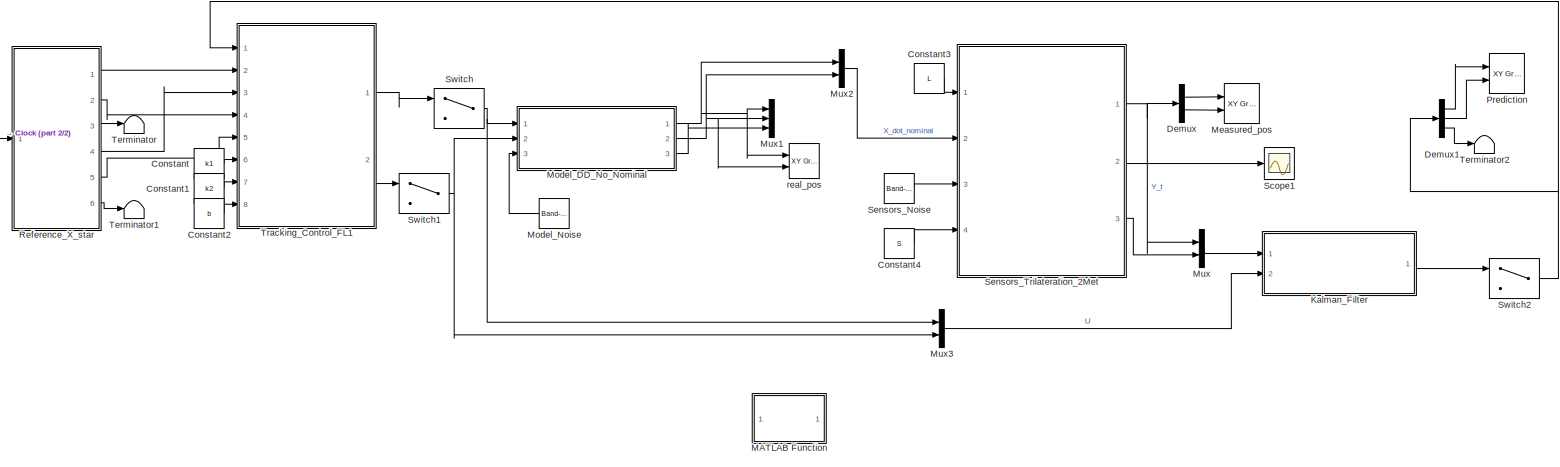
[diagram: root canvas - part 1/2, most of the canvas]
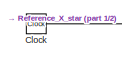
[diagram: root canvas - part 2/2, middle left region]
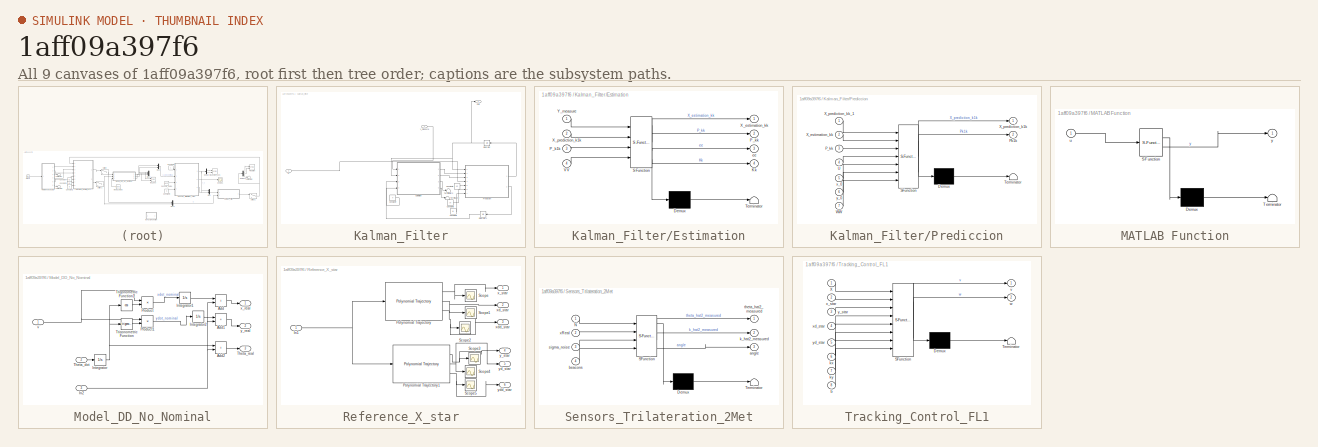
[diagram: thumbnail index - all 9 canvases of the model, root first then tree order]
MODEL slx_1aff09a397f6
KIND model
CONFIG AbsTol = auto
CONFIG EnableMultiTasking = off
CONFIG FixedStep = auto
CONFIG MaxStep = auto
CONFIG MinStep = auto
CONFIG RelTol = 1e-3
CONFIG SampleTimeConstraint = Unconstrained
CONFIG SolverName = VariableStepAuto
CONFIG StartTime = 0.0
CONFIG StopTime = 10.0
BLOCK [Clock] Clock
BLOCK [Constant] Constant
  Value = k1
BLOCK [Constant] Constant1
  Value = k2
BLOCK [Constant] Constant2
  Value = b
BLOCK [Constant] Constant3
  Value = L
BLOCK [Constant] Constant4
  Value = S
BLOCK [Demux] Demux
  Outputs = 2
  Ports = [1, 2]
BLOCK [Demux] Demux1
  Outputs = 3
  Ports = [1, 3]
BLOCK [SubSystem] Kalman_Filter
  Ports = [2, 1]
  RequestExecContextInheritance = off
BLOCK [Constant] Kalman_Filter/Constant5
  Value = x0
BLOCK [Constant] Kalman_Filter/Constant6
  Value = y0
BLOCK [Constant] Kalman_Filter/Constant7
  Value = V
BLOCK [Constant] Kalman_Filter/Constant8
  Value = W
BLOCK [SubSystem] Kalman_Filter/Estimation
  ErrorFcn = Stateflow.Translate.translate
  PermitHierarchicalResolution = ExplicitOnly
  Ports = [4, 4]
  RequestExecContextInheritance = off
  SFBlockType = MATLAB Function
  TreatAsAtomicUnit = on
BLOCK [Demux] Kalman_Filter/Estimation/ Demux 
  Outputs = 1
  Ports = [1, 1]
BLOCK [S-Function] Kalman_Filter/Estimation/ SFunction 
  EnableBusSupport = on
  FunctionName = sf_sfun
  PortCounts = [4 5]
  Ports = [4, 5]
  SFcnIsStateOwnerBlock = off
  SFunctionDeploymentMode = off
  Tag = Stateflow S-Function 2
BLOCK [Terminator] Kalman_Filter/Estimation/ Terminator 
BLOCK [Outport] Kalman_Filter/Estimation/Kk
  Port = 4
BLOCK [Inport] Kalman_Filter/Estimation/P_k1k
  Port = 3
BLOCK [Outport] Kalman_Filter/Estimation/P_kk
  Port = 2
BLOCK [Inport] Kalman_Filter/Estimation/VV
  Port = 4
BLOCK [Outport] Kalman_Filter/Estimation/X_estimation_kk
BLOCK [Inport] Kalman_Filter/Estimation/X_prediction_k1k
  Port = 2
BLOCK [Inport] Kalman_Filter/Estimation/Y_measure
BLOCK [Outport] Kalman_Filter/Estimation/ee
  Port = 3
BLOCK [Integrator] Kalman_Filter/Integrator
  InitialCondition = [x0;y0;theta0]
  Ports = [1, 1]
BLOCK [Integrator] Kalman_Filter/Integrator1
  InitialCondition = P0
  Ports = [1, 1]
BLOCK [Outport] Kalman_Filter/Out1
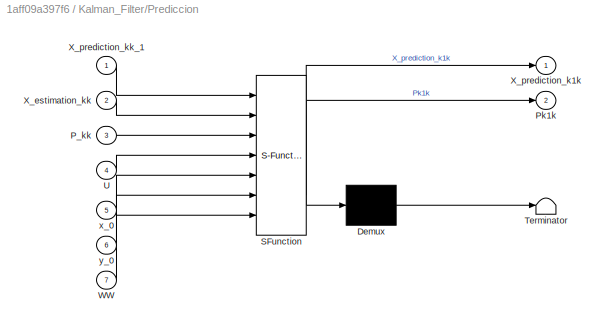
BLOCK [SubSystem] Kalman_Filter/Prediccion
  ErrorFcn = Stateflow.Translate.translate
  PermitHierarchicalResolution = ExplicitOnly
  Ports = [7, 2]
  RequestExecContextInheritance = off
  SFBlockType = MATLAB Function
  TreatAsAtomicUnit = on
BLOCK [Demux] Kalman_Filter/Prediccion/ Demux 
  Outputs = 1
  Ports = [1, 1]
BLOCK [S-Function] Kalman_Filter/Prediccion/ SFunction 
  EnableBusSupport = on
  FunctionName = sf_sfun
  PortCounts = [7 3]
  Ports = [7, 3]
  SFcnIsStateOwnerBlock = off
  SFunctionDeploymentMode = off
  Tag = Stateflow S-Function 4
BLOCK [Terminator] Kalman_Filter/Prediccion/ Terminator 
BLOCK [Inport] Kalman_Filter/Prediccion/P_kk
  Port = 3
BLOCK [Outport] Kalman_Filter/Prediccion/Pk1k
  Port = 2
BLOCK [Inport] Kalman_Filter/Prediccion/U
  Port = 4
BLOCK [Inport] Kalman_Filter/Prediccion/WW
  Port = 7
BLOCK [Inport] Kalman_Filter/Prediccion/X_estimation_kk
  Port = 2
BLOCK [Outport] Kalman_Filter/Prediccion/X_prediction_k1k
BLOCK [Inport] Kalman_Filter/Prediccion/X_prediction_kk_1
BLOCK [Inport] Kalman_Filter/Prediccion/x_0
  Port = 5
BLOCK [Inport] Kalman_Filter/Prediccion/y_0
  Port = 6
BLOCK [Terminator] Kalman_Filter/Terminator3
BLOCK [Terminator] Kalman_Filter/Terminator4
BLOCK [Inport] Kalman_Filter/U
  Port = 2
BLOCK [Inport] Kalman_Filter/Y_measure
BLOCK [SubSystem] MATLAB Function
  ErrorFcn = Stateflow.Translate.translate
  PermitHierarchicalResolution = ExplicitOnly
  Ports = [1, 1]
  RequestExecContextInheritance = off
  SFBlockType = MATLAB Function
  TreatAsAtomicUnit = on
BLOCK [Demux] MATLAB Function/ Demux 
  Outputs = 1
  Ports = [1, 1]
BLOCK [S-Function] MATLAB Function/ SFunction 
  EnableBusSupport = off
  FunctionName = sf_sfun
  PortCounts = [1 2]
  Ports = [1, 2]
  SFcnIsStateOwnerBlock = off
  SFunctionDeploymentMode = off
  Tag = Stateflow S-Function 5
BLOCK [Terminator] MATLAB Function/ Terminator 
BLOCK [Inport] MATLAB Function/u
BLOCK [Outport] MATLAB Function/y
BLOCK [Reference] Measured_pos  REF=simulink/Sinks/XY Graph
  Ports = [2]
  SourceBlock = simulink/Sinks/XY Graph
  SourceProductBaseCode = SL
  SourceType = XY scope.
BLOCK [SubSystem] Model_DD_No_Nominal
  Ports = [3, 3]
  RequestExecContextInheritance = off
BLOCK [Sum] Model_DD_No_Nominal/Add
  IconShape = rectangular
  Ports = [2, 1]
BLOCK [Sum] Model_DD_No_Nominal/Add1
  IconShape = rectangular
  Ports = [2, 1]
BLOCK [Sum] Model_DD_No_Nominal/Add2
  IconShape = rectangular
  Ports = [2, 1]
BLOCK [Inport] Model_DD_No_Nominal/In2
  Port = 3
BLOCK [Integrator] Model_DD_No_Nominal/Integrator
  InitialCondition = theta0
  Ports = [1, 1]
BLOCK [Integrator] Model_DD_No_Nominal/Integrator1
  InitialCondition = x0
  Ports = [1, 1]
BLOCK [Integrator] Model_DD_No_Nominal/Integrator2
  InitialCondition = y0
  Ports = [1, 1]
BLOCK [Product] Model_DD_No_Nominal/Product
  Ports = [2, 1]
BLOCK [Product] Model_DD_No_Nominal/Product1
  Ports = [2, 1]
BLOCK [Inport] Model_DD_No_Nominal/Theta_dot
  Port = 2
BLOCK [Outport] Model_DD_No_Nominal/Theta_real
  Port = 3
BLOCK [Trigonometry] Model_DD_No_Nominal/Trigonometric Function
  Ports = [1, 1]
BLOCK [Trigonometry] Model_DD_No_Nominal/Trigonometric Function1
  Operator = cos
  Ports = [1, 1]
BLOCK [Inport] Model_DD_No_Nominal/v
BLOCK [Outport] Model_DD_No_Nominal/x_real
BLOCK [Outport] Model_DD_No_Nominal/y_real
  Port = 2
BLOCK [Reference] Model_Noise  REF=simulink/Sources/Band-Limited
White Noise
  Ports = [0, 1]
  SourceBlock = simulink/Sources/Band-Limited\nWhite Noise
  SourceProductBaseCode = SL
  SourceType = Band-Limited White Noise.
BLOCK [Mux] Mux
  DisplayOption = bar
  Inputs = 2
  Ports = [2, 1]
BLOCK [Mux] Mux1
  DisplayOption = bar
  Inputs = 3
  Ports = [3, 1]
BLOCK [Mux] Mux2
  DisplayOption = bar
  Inputs = 2
  Ports = [2, 1]
BLOCK [Mux] Mux3
  DisplayOption = bar
  Inputs = 2
  Ports = [2, 1]
BLOCK [Reference] Prediction  REF=simulink/Sinks/XY Graph
  Ports = [2]
  SourceBlock = simulink/Sinks/XY Graph
  SourceProductBaseCode = SL
  SourceType = XY scope.
BLOCK [SubSystem] Reference_X_star
  Ports = [1, 6]
  RequestExecContextInheritance = off
BLOCK [Inport] Reference_X_star/In1
BLOCK [Reference] Reference_X_star/Polynomial Trajectory  REF=robotcorelib/Polynomial Trajectory
  Ports = [1, 3]
  SourceBlock = robotcorelib/Polynomial Trajectory
  SourceProductBaseCode = NV,RO,RR,UV
  SourceType = robotics.slcore.internal.block.PolyTrajSys
BLOCK [Reference] Reference_X_star/Polynomial Trajectory1  REF=robotcorelib/Polynomial Trajectory
  Ports = [1, 3]
  SourceBlock = robotcorelib/Polynomial Trajectory
  SourceProductBaseCode = NV,RO,RR,UV
  SourceType = robotics.slcore.internal.block.PolyTrajSys
BLOCK [Scope] Reference_X_star/Scope
  Floating = off
  NumInputPorts = 1
  Ports = [1]
  ScopeSpecificationString = Simulink.scopes.TimeScopeBlockCfg('CurrentConfiguration', extmgr.ConfigurationSet(extmgr.Configuration('Core','General UI',true),extmgr.Configuration('Core','Source UI',true),extmgr.Configuration('Sources','WiredSimulink',true,'DataLogging',true,'DataLoggingVariableName','x_ref','DataLoggingLimitDataPoints',true,'DataLoggingMaxPoints','10000','DataLoggingSaveFormat','StructureWithTime'),extmgr.Con...<+1542ch>
BLOCK [Scope] Reference_X_star/Scope1
  Floating = off
  NumInputPorts = 1
  Ports = [1]
  ScopeSpecificationString = Simulink.scopes.TimeScopeBlockCfg('CurrentConfiguration', extmgr.ConfigurationSet(extmgr.Configuration('Core','General UI',true),extmgr.Configuration('Core','Source UI',true),extmgr.Configuration('Sources','WiredSimulink',true,'DataLoggingVariableName','xd_ref','DataLogging',true,'DataLoggingLimitDataPoints',true,'DataLoggingMaxPoints','10000','DataLoggingSaveFormat','StructureWithTime'),extmgr.Co...<+1560ch>
BLOCK [Scope] Reference_X_star/Scope2
  Floating = off
  NumInputPorts = 1
  Ports = [1]
  ScopeSpecificationString = Simulink.scopes.TimeScopeBlockCfg('CurrentConfiguration', extmgr.ConfigurationSet(extmgr.Configuration('Core','General UI',true),extmgr.Configuration('Core','Source UI',true),extmgr.Configuration('Sources','WiredSimulink',true,'DataLoggingVariableName','xdd_ref','DataLogging',true,'DataLoggingLimitDataPoints',true,'DataLoggingMaxPoints','10000','DataLoggingSaveFormat','StructureWithTime'),extmgr.C...<+1511ch>
BLOCK [Scope] Reference_X_star/Scope3
  Floating = off
  NumInputPorts = 1
  Ports = [1]
  ScopeSpecificationString = Simulink.scopes.TimeScopeBlockCfg('CurrentConfiguration', extmgr.ConfigurationSet(extmgr.Configuration('Core','General UI',true),extmgr.Configuration('Core','Source UI',true),extmgr.Configuration('Sources','WiredSimulink',true,'DataLoggingVariableName','y_ref','DataLogging',true,'DataLoggingLimitDataPoints',true,'DataLoggingMaxPoints','10000','DataLoggingSaveFormat','StructureWithTime'),extmgr.Con...<+1516ch>
BLOCK [Scope] Reference_X_star/Scope4
  Floating = off
  NumInputPorts = 1
  Ports = [1]
  ScopeSpecificationString = Simulink.scopes.TimeScopeBlockCfg('CurrentConfiguration', extmgr.ConfigurationSet(extmgr.Configuration('Core','General UI',true),extmgr.Configuration('Core','Source UI',true),extmgr.Configuration('Sources','WiredSimulink',true,'DataLoggingVariableName','yd_ref','DataLogging',true,'DataLoggingLimitDataPoints',true,'DataLoggingMaxPoints','10000','DataLoggingSaveFormat','StructureWithTime'),extmgr.Co...<+1513ch>
BLOCK [Scope] Reference_X_star/Scope5
  Floating = off
  NumInputPorts = 1
  Ports = [1]
  ScopeSpecificationString = Simulink.scopes.TimeScopeBlockCfg('CurrentConfiguration', extmgr.ConfigurationSet(extmgr.Configuration('Core','General UI',true),extmgr.Configuration('Core','Source UI',true),extmgr.Configuration('Sources','WiredSimulink',true,'DataLoggingVariableName','ydd_ref','DataLogging',true,'DataLoggingLimitDataPoints',true,'DataLoggingMaxPoints','10000','DataLoggingSaveFormat','StructureWithTime'),extmgr.C...<+1514ch>
BLOCK [Outport] Reference_X_star/x_star
BLOCK [Outport] Reference_X_star/xd_star
  Port = 2
BLOCK [Outport] Reference_X_star/xdd_star
  Port = 3
BLOCK [Outport] Reference_X_star/y_star
  Port = 4
BLOCK [Outport] Reference_X_star/yd_star
  Port = 5
BLOCK [Outport] Reference_X_star/ydd_star
  Port = 6
BLOCK [Scope] Scope1
  Floating = off
  NumInputPorts = 1
  Ports = [1]
  ScopeSpecificationString = Simulink.scopes.TimeScopeBlockCfg('CurrentConfiguration', extmgr.ConfigurationSet(extmgr.Configuration('Core','General UI',true),extmgr.Configuration('Core','Source UI',true),extmgr.Configuration('Sources','WiredSimulink',true,'DataLoggingVariableName','ScopeData1'),extmgr.Configuration('Visuals','Time Domain',true,'SerializedDisplays',{struct('MinYLimReal','-660.86996','MaxYLimReal','17856.99476'...<+1423ch>
BLOCK [Reference] Sensors_Noise  REF=simulink/Sources/Band-Limited
White Noise
  Ports = [0, 1]
  SourceBlock = simulink/Sources/Band-Limited\nWhite Noise
  SourceProductBaseCode = SL
  SourceType = Band-Limited White Noise.
BLOCK [SubSystem] Sensors_Trilateration_2Met
  ErrorFcn = Stateflow.Translate.translate
  PermitHierarchicalResolution = ExplicitOnly
  Ports = [4, 3]
  RequestExecContextInheritance = off
  SFBlockType = MATLAB Function
  TreatAsAtomicUnit = on
BLOCK [Demux] Sensors_Trilateration_2Met/ Demux 
  Outputs = 1
  Ports = [1, 1]
BLOCK [S-Function] Sensors_Trilateration_2Met/ SFunction 
  EnableBusSupport = on
  FunctionName = sf_sfun
  PortCounts = [4 4]
  Ports = [4, 4]
  SFcnIsStateOwnerBlock = off
  SFunctionDeploymentMode = off
  Tag = Stateflow S-Function 3
BLOCK [Terminator] Sensors_Trilateration_2Met/ Terminator 
BLOCK [Inport] Sensors_Trilateration_2Met/N
BLOCK [Outport] Sensors_Trilateration_2Met/angle
  Port = 3
BLOCK [Inport] Sensors_Trilateration_2Met/beacons
  Port = 4
BLOCK [Outport] Sensors_Trilateration_2Met/k_hat2_measured
  Port = 2
BLOCK [Inport] Sensors_Trilateration_2Met/sigma_noise
  Port = 3
BLOCK [Outport] Sensors_Trilateration_2Met/theta_hat2_measured
BLOCK [Inport] Sensors_Trilateration_2Met/xReal
  Port = 2
BLOCK [Switch] Switch
  Criteria = u2 > Threshold
  InputSameDT = off
  SaturateOnIntegerOverflow = off
BLOCK [Switch] Switch1
  Criteria = u2 > Threshold
  InputSameDT = off
  SaturateOnIntegerOverflow = off
BLOCK [Switch] Switch2
  Criteria = u2 > Threshold
  InputSameDT = off
  SaturateOnIntegerOverflow = off
BLOCK [Terminator] Terminator
BLOCK [Terminator] Terminator1
BLOCK [Terminator] Terminator2
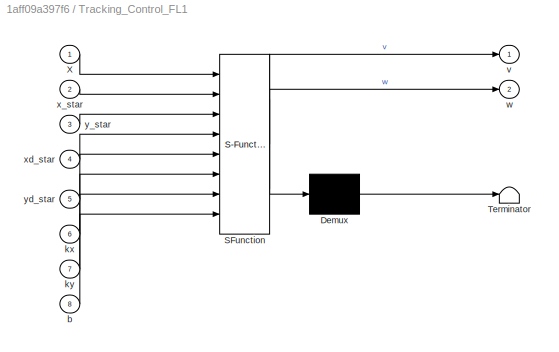
BLOCK [SubSystem] Tracking_Control_FL1
  ErrorFcn = Stateflow.Translate.translate
  PermitHierarchicalResolution = ExplicitOnly
  Ports = [8, 2]
  RequestExecContextInheritance = off
  SFBlockType = MATLAB Function
  TreatAsAtomicUnit = on
BLOCK [Demux] Tracking_Control_FL1/ Demux 
  Outputs = 1
  Ports = [1, 1]
BLOCK [S-Function] Tracking_Control_FL1/ SFunction 
  EnableBusSupport = on
  FunctionName = sf_sfun
  PortCounts = [8 3]
  Ports = [8, 3]
  SFcnIsStateOwnerBlock = off
  SFunctionDeploymentMode = off
  Tag = Stateflow S-Function 1
BLOCK [Terminator] Tracking_Control_FL1/ Terminator 
BLOCK [Inport] Tracking_Control_FL1/X
BLOCK [Inport] Tracking_Control_FL1/b
  Port = 8
BLOCK [Inport] Tracking_Control_FL1/kx
  Port = 6
BLOCK [Inport] Tracking_Control_FL1/ky
  Port = 7
BLOCK [Outport] Tracking_Control_FL1/v
BLOCK [Outport] Tracking_Control_FL1/w
  Port = 2
BLOCK [Inport] Tracking_Control_FL1/x_star
  Port = 2
BLOCK [Inport] Tracking_Control_FL1/xd_star
  Port = 4
BLOCK [Inport] Tracking_Control_FL1/y_star
  Port = 3
BLOCK [Inport] Tracking_Control_FL1/yd_star
  Port = 5
BLOCK [Reference] real_pos  REF=simulink/Sinks/XY Graph
  Ports = [2]
  SourceBlock = simulink/Sinks/XY Graph
  SourceProductBaseCode = SL
  SourceType = XY scope.
LINE Clock:1 -> Reference_X_star:1
LINE Constant1:1 -> Tracking_Control_FL1:7
LINE Constant2:1 -> Tracking_Control_FL1:8
LINE Constant3:1 -> Sensors_Trilateration_2Met:1
LINE Constant4:1 -> Sensors_Trilateration_2Met:4
LINE Constant:1 -> Tracking_Control_FL1:6
LINE Demux1:1 -> Prediction:1
LINE Demux1:2 -> Prediction:2
LINE Demux1:3 -> Terminator2:1
LINE Demux:1 -> Measured_pos:1
LINE Demux:2 -> Measured_pos:2
LINE Kalman_Filter/Constant5:1 -> Kalman_Filter/Prediccion:5
LINE Kalman_Filter/Constant6:1 -> Kalman_Filter/Prediccion:6
LINE Kalman_Filter/Constant7:1 -> Kalman_Filter/Estimation:4
LINE Kalman_Filter/Constant8:1 -> Kalman_Filter/Prediccion:7
LINE Kalman_Filter/Estimation:1 -> Kalman_Filter/Prediccion:2
LINE Kalman_Filter/Estimation:2 -> Kalman_Filter/Prediccion:3
LINE Kalman_Filter/Estimation:3 -> Kalman_Filter/Terminator3:1
LINE Kalman_Filter/Estimation:4 -> Kalman_Filter/Terminator4:1
LINE Kalman_Filter/Integrator1:1 -> Kalman_Filter/Estimation:3
NET Kalman_Filter/Integrator:1 -> Kalman_Filter/Estimation:2, Kalman_Filter/Out1:1, Kalman_Filter/Prediccion:1
LINE Kalman_Filter/Prediccion:1 -> Kalman_Filter/Integrator:1
LINE Kalman_Filter/Prediccion:2 -> Kalman_Filter/Integrator1:1
LINE Kalman_Filter/U:1 -> Kalman_Filter/Prediccion:4
LINE Kalman_Filter/Y_measure:1 -> Kalman_Filter/Estimation:1
LINE Kalman_Filter:1 -> Switch2:1
LINE Model_DD_No_Nominal/Add1:1 -> Model_DD_No_Nominal/y_real:1
LINE Model_DD_No_Nominal/Add2:1 -> Model_DD_No_Nominal/Theta_real:1
LINE Model_DD_No_Nominal/Add:1 -> Model_DD_No_Nominal/x_real:1
NET Model_DD_No_Nominal/In2:1 -> Model_DD_No_Nominal/Add1:2, Model_DD_No_Nominal/Add2:2, Model_DD_No_Nominal/Add:2
LINE Model_DD_No_Nominal/Integrator1:1 -> Model_DD_No_Nominal/Add:1
LINE Model_DD_No_Nominal/Integrator2:1 -> Model_DD_No_Nominal/Add1:1
NET Model_DD_No_Nominal/Integrator:1 -> Model_DD_No_Nominal/Add2:1, Model_DD_No_Nominal/Trigonometric Function1:1, Model_DD_No_Nominal/Trigonometric Function:1
LINE Model_DD_No_Nominal/Product1:1 -> Model_DD_No_Nominal/Integrator2:1
LINE Model_DD_No_Nominal/Product:1 -> Model_DD_No_Nominal/Integrator1:1
LINE Model_DD_No_Nominal/Theta_dot:1 -> Model_DD_No_Nominal/Integrator:1
LINE Model_DD_No_Nominal/Trigonometric Function1:1 -> Model_DD_No_Nominal/Product:2
LINE Model_DD_No_Nominal/Trigonometric Function:1 -> Model_DD_No_Nominal/Product1:2
NET Model_DD_No_Nominal/v:1 -> Model_DD_No_Nominal/Product1:1, Model_DD_No_Nominal/Product:1
NET Model_DD_No_Nominal:1 -> Mux1:1, Mux2:1, real_pos:1
NET Model_DD_No_Nominal:2 -> Mux1:2, Mux2:2, real_pos:2
LINE Model_DD_No_Nominal:3 -> Mux1:3
LINE Model_Noise:1 -> Model_DD_No_Nominal:3
LINE Mux2:1 -> Sensors_Trilateration_2Met:2
LINE Mux3:1 -> Kalman_Filter:2
LINE Mux:1 -> Kalman_Filter:1
NET Reference_X_star/In1:1 -> Reference_X_star/Polynomial Trajectory1:1, Reference_X_star/Polynomial Trajectory:1
NET Reference_X_star/Polynomial Trajectory1:1 -> Reference_X_star/Scope3:1, Reference_X_star/y_star:1
NET Reference_X_star/Polynomial Trajectory1:2 -> Reference_X_star/Scope4:1, Reference_X_star/yd_star:1
NET Reference_X_star/Polynomial Trajectory1:3 -> Reference_X_star/Scope5:1, Reference_X_star/ydd_star:1
NET Reference_X_star/Polynomial Trajectory:1 -> Reference_X_star/Scope:1, Reference_X_star/x_star:1
NET Reference_X_star/Polynomial Trajectory:2 -> Reference_X_star/Scope1:1, Reference_X_star/xd_star:1
NET Reference_X_star/Polynomial Trajectory:3 -> Reference_X_star/Scope2:1, Reference_X_star/xdd_star:1
LINE Reference_X_star:1 -> Tracking_Control_FL1:2
LINE Reference_X_star:2 -> Tracking_Control_FL1:4
LINE Reference_X_star:3 -> Terminator:1
LINE Reference_X_star:4 -> Tracking_Control_FL1:3
LINE Reference_X_star:5 -> Tracking_Control_FL1:5
LINE Reference_X_star:6 -> Terminator1:1
LINE Sensors_Noise:1 -> Sensors_Trilateration_2Met:3
NET Sensors_Trilateration_2Met:1 -> Demux:1, Mux:1
LINE Sensors_Trilateration_2Met:2 -> Scope1:1
LINE Sensors_Trilateration_2Met:3 -> Mux:2
NET Switch1:1 -> Model_DD_No_Nominal:2, Mux3:2
NET Switch2:1 -> Demux1:1, Tracking_Control_FL1:1
NET Switch:1 -> Model_DD_No_Nominal:1, Mux3:1
LINE Tracking_Control_FL1:1 -> Switch:1
LINE Tracking_Control_FL1:2 -> Switch1:1
note: NET lines group one-source signal fan-out (src -> all destinations, sorted); 1:1 wires keep LINE
CHART Tracking_Control_FL1 states=1 transitions=1
  STATE_LABEL 'eML_blk_kernel()'
  STATE_LABEL 'SCRIPT:\n\nfunction [v,w] = robot_control_for_No_Nominal_FL_sim(X,x_star,y_star,xd_star,yd_star,kx,ky,b)\n\n\nx=X(1);\ny=X(2);\ntheta=X(3);\n\nxB=x+b*cos(theta);\nyB=y+b*sin(theta);\n\nxstar=x_star;\nystar=y_star;\n\nxBdotstar=xd_star;\nyBdotstar=yd_star;\n\n\nTinv=[\n     cos(theta)   sin(theta);\n    -sin(theta)/b cos(theta)/b\n    ];\nux=xBdotstar+kx*(xstar-xB);\nuy=yBdotstar+ky*(ystar-yB);\n\nvw=Tinv*[ux;uy];\nv=vw(1);\n...<+81ch>'
CHART Kalman_Filter/Estimation states=1 transitions=1
  STATE_LABEL 'eML_blk_kernel()'
  STATE_LABEL "SCRIPT:\nfunction[X_estimation_kk,P_kk,ee,Kk]=Kalman_Filter(Y_measure,X_prediction_k1k,P_k1k,VV)\nCk=[1 0 0;\n    0 1 0\n    0 0 1];\n\n%% kalman gain\nKk=P_k1k*Ck'*inv(((Ck*P_k1k*Ck'+VV)));\n %% predicted output\n yhk=Ck*X_prediction_k1k;\n%% innovation\nee=Y_measure-yhk;\n%% from prediction to estimation\n X_estimation_kk=X_prediction_k1k+Kk*ee;\n P_kk=P_k1k-Kk*Ck*P_k1k;\n\n"
CHART Sensors_Trilateration_2Met states=1 transitions=1
  STATE_LABEL 'eML_blk_kernel()'
  STATE_LABEL 'SCRIPT:\nfunction [theta_hat2_measured,k_hat2_measured, angle] = trilateration_second_method(N,xReal,sigma_noise,beacons)\n \nf=@(theta,beacons)(sqrt((beacons(:,1)-theta(1)).^2+(beacons(:,2)-theta(2)).^2));\n%%\n%theta0=xReal+sigma_0*randn(2,1); % theta=x0,y0\n%%\nd=f(xReal,beacons);%distancia entre beacons y medida real\ndhat=d+sigma_noise;% distancia con noise de sensor\n% % %% tecnica 1\n% % J=zeros(N,2)...<+1365ch>'
CHART Kalman_Filter/Prediccion states=1 transitions=1
  STATE_LABEL 'eML_blk_kernel()'
  STATE_LABEL "SCRIPT:\nfunction[X_prediction_k1k, Pk1k]=Kalman_Predictor(X_prediction_kk_1,X_estimation_kk,P_kk,U,x_0,y_0,WW)\n\ntheta=atan(X_estimation_kk(2)/X_estimation_kk(1));\nA_t=[\n    1 0 -U(1)*sin(theta);\n    0 1  U(1)*cos(theta);\n    0 0             1\n    ];\n%% from estimation to prediction\nX_prediction_k1k=[U(1)*cos(X_prediction_kk_1(3));\n    U(1)*sin(X_prediction_kk_1(3));\n    U(2)];\nPk1k=A_t.*P_kk.*A_t'...<+11ch>"
CHART MATLAB Function states=1 transitions=1
  STATE_LABEL 'eML_blk_kernel()'
  STATE_LABEL 'SCRIPT:\nfunction y = fcn(u)\n\ny = u;\n'
CHART  states=0 transitions=0
CHART  states=0 transitions=0
CHART  states=0 transitions=0
CHART  states=0 transitions=0
CHART  states=0 transitions=0
